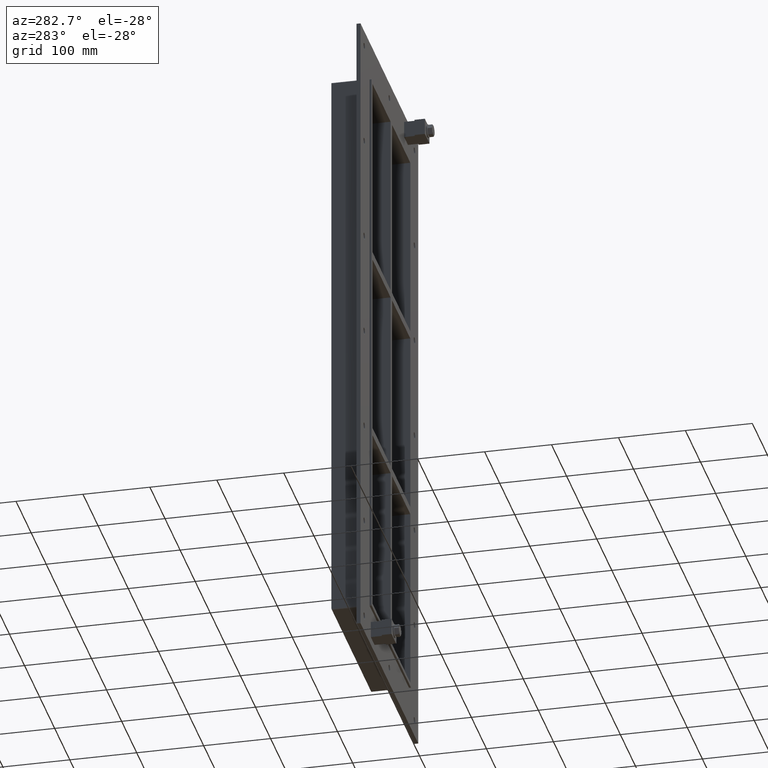
[diagram: clean part render]
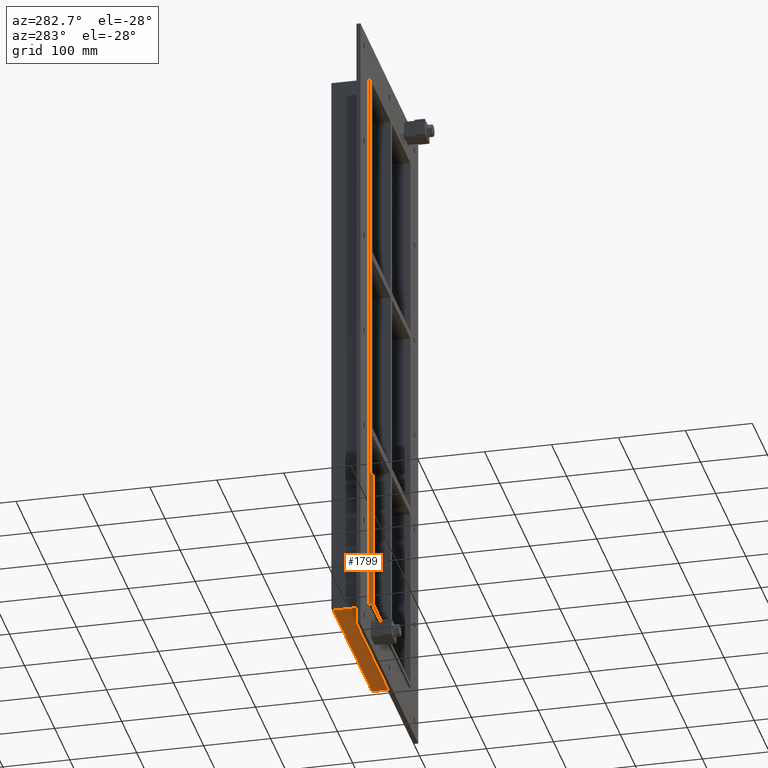
[diagram: same view with one face highlighted and labeled with its STEP entity id]
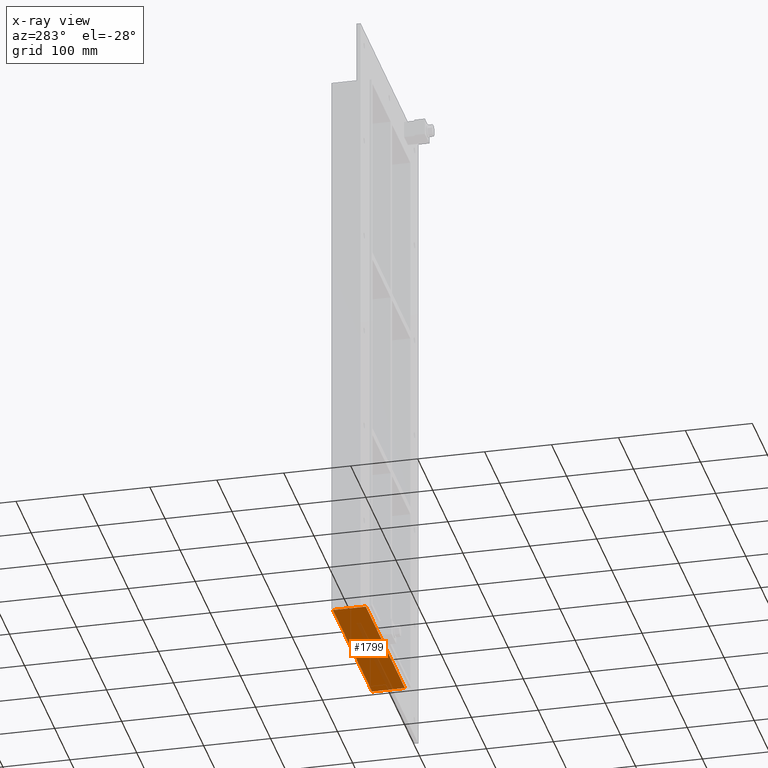
[diagram: x-ray of the same camera — body ghosted, the highlighted face saturated]
A machine part, auxiliary view. The second image highlights one B-rep face of the part: STEP entity #1799.
The next image is the same camera in x-ray: the body ghosted, the highlighted face saturated — about 12% of this face is hidden behind the body in this view.
In plain terms, the highlighted planar face has unit normal (0, 0, -1).
Its self-contained STEP definition (entity closure, byte-faithful):
#1443=CARTESIAN_POINT('',(-129.50000000000003,6.000000000000001,-435.00000000000006));
#1444=VERTEX_POINT('',#1443);
#1452=CARTESIAN_POINT('',(129.5,6.000000000000001,-435.00000000000006));
#1453=VERTEX_POINT('',#1452);
#1454=CARTESIAN_POINT('',(129.5,6.000000000000001,-435.00000000000006));
#1455=DIRECTION('',(-1.0,0.0,0.0));
#1456=VECTOR('',#1455,259.0);
#1457=LINE('',#1454,#1456);
#1458=EDGE_CURVE('',#1453,#1444,#1457,.T.);
#1769=CARTESIAN_POINT('',(131.5,0.0,-435.00000000000006));
#1770=DIRECTION('',(0.0,0.0,-1.0));
#1771=DIRECTION('',(-1.0,0.0,0.0));
#1772=AXIS2_PLACEMENT_3D('',#1769,#1770,#1771);
#1773=PLANE('',#1772);
#1774=ORIENTED_EDGE('',*,*,#1458,.T.);
#1775=CARTESIAN_POINT('',(-129.50000000000003,55.0,-435.00000000000006));
#1776=VERTEX_POINT('',#1775);
#1777=CARTESIAN_POINT('',(-129.50000000000003,55.0,-435.00000000000006));
#1778=DIRECTION('',(0.0,-1.0,0.0));
#1779=VECTOR('',#1778,49.0);
#1780=LINE('',#1777,#1779);
#1781=EDGE_CURVE('',#1776,#1444,#1780,.T.);
#1782=ORIENTED_EDGE('',*,*,#1781,.F.);
#1783=CARTESIAN_POINT('',(129.5,55.0,-435.00000000000006));
#1784=VERTEX_POINT('',#1783);
#1785=CARTESIAN_POINT('',(129.5,55.0,-435.00000000000006));
#1786=DIRECTION('',(-1.0,0.0,0.0));
#1787=VECTOR('',#1786,259.00000000000006);
#1788=LINE('',#1785,#1787);
#1789=EDGE_CURVE('',#1784,#1776,#1788,.T.);
#1790=ORIENTED_EDGE('',*,*,#1789,.F.);
#1791=CARTESIAN_POINT('',(129.5,6.000000000000001,-435.00000000000006));
#1792=DIRECTION('',(0.0,1.0,0.0));
#1793=VECTOR('',#1792,49.0);
#1794=LINE('',#1791,#1793);
#1795=EDGE_CURVE('',#1453,#1784,#1794,.T.);
#1796=ORIENTED_EDGE('',*,*,#1795,.F.);
#1797=EDGE_LOOP('',(#1774,#1782,#1790,#1796));
#1798=FACE_OUTER_BOUND('',#1797,.T.);
#1799=ADVANCED_FACE('',(#1798),#1773,.T.);